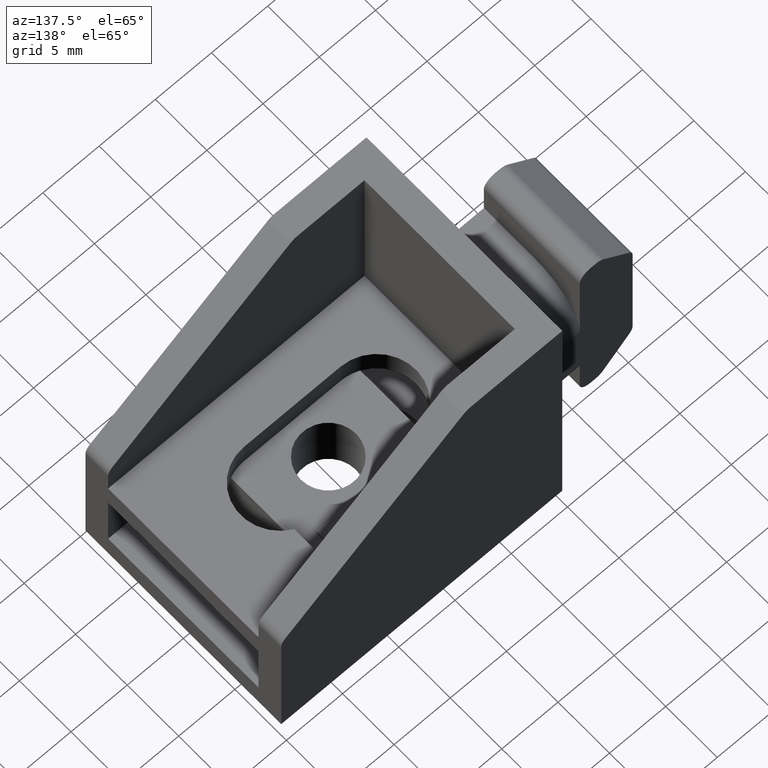
[diagram: clean part render]
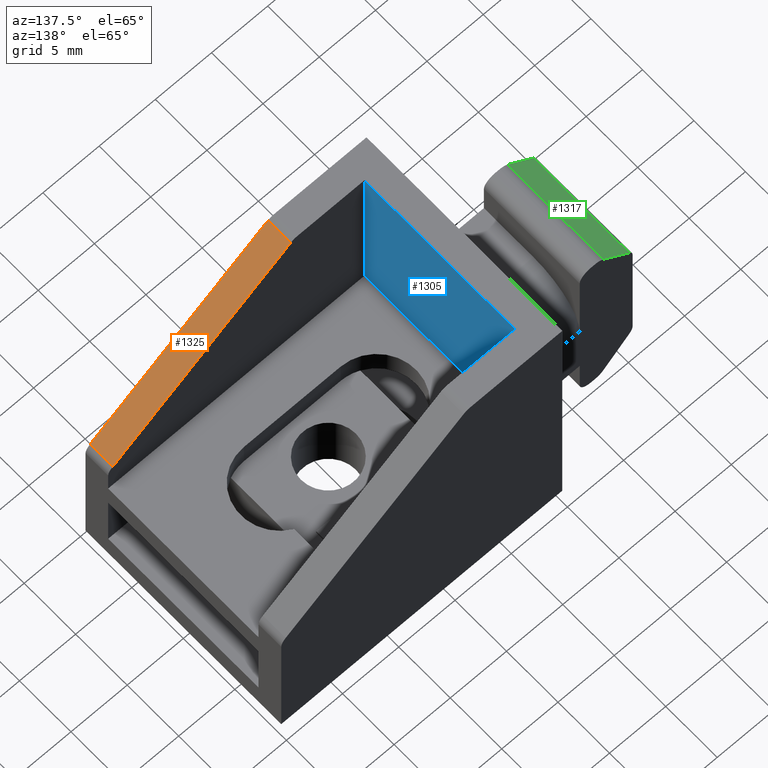
[diagram: same view with three faces highlighted in distinct colors, each labeled with its STEP entity id]
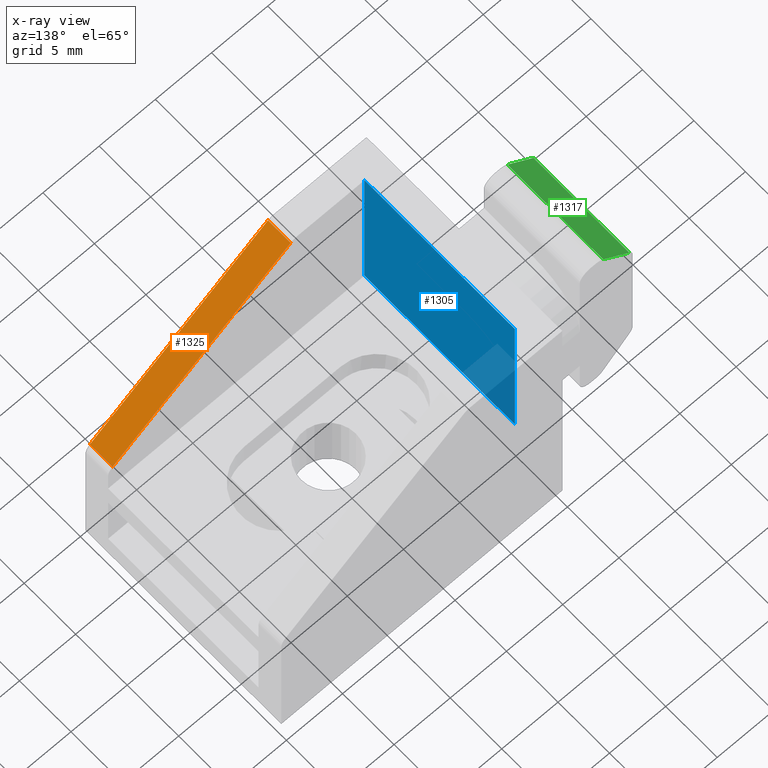
[diagram: x-ray of the same camera — body ghosted, the three highlighted faces saturated]
A machine part, auxiliary view with three faces highlighted in distinct colors.
The next image is the same camera in x-ray (body ghosted, the three faces saturated) — at least one of them is partly hidden behind the body in this view.
Their STEP definitions:

[orange] entity #1325 — the highlighted planar face has unit normal (0.5977, 0, 0.8017).
#52=PLANE('',#1438);
#180=LINE('',#2124,#324);
#202=LINE('',#2183,#346);
#203=LINE('',#2186,#347);
#204=LINE('',#2187,#348);
#324=VECTOR('',#1717,19.7465495528261);
#346=VECTOR('',#1795,2.2);
#347=VECTOR('',#1798,2.2);
#348=VECTOR('',#1799,19.7465495528261);
#418=FACE_OUTER_BOUND('',#490,.T.);
#490=EDGE_LOOP('',(#1211,#1212,#1213,#1214));
#657=VERTEX_POINT('',#2121);
#658=VERTEX_POINT('',#2123);
#667=VERTEX_POINT('',#2181);
#668=VERTEX_POINT('',#2185);
#826=EDGE_CURVE('',#658,#657,#180,.T.);
#855=EDGE_CURVE('',#658,#667,#202,.T.);
#856=EDGE_CURVE('',#668,#657,#203,.T.);
#857=EDGE_CURVE('',#667,#668,#204,.T.);
#1211=ORIENTED_EDGE('',*,*,#855,.F.);
#1212=ORIENTED_EDGE('',*,*,#826,.T.);
#1213=ORIENTED_EDGE('',*,*,#856,.F.);
#1214=ORIENTED_EDGE('',*,*,#857,.F.);
#1325=ADVANCED_FACE('',(#418),#52,.T.);
#1438=AXIS2_PLACEMENT_3D('',#2184,#1796,#1797);
#1717=DIRECTION('',(-0.801745863780567,0.,0.597665098454605));
#1795=DIRECTION('',(0.,-1.,0.));
#1796=DIRECTION('center_axis',(0.597665098454605,0.,0.801745863780567));
#1797=DIRECTION('ref_axis',(0.801745863780567,0.,-0.597665098454605));
#1798=DIRECTION('',(0.,1.,0.));
#1799=DIRECTION('',(-0.801745863780567,0.,0.597665098454605));
#2121=CARTESIAN_POINT('',(8.76595067053827,-7.3,24.6017458637806));
#2123=CARTESIAN_POINT('',(24.5976650984546,-7.3,12.799922381152));
#2124=CARTESIAN_POINT('',(12.6774600118096,-7.3,21.685893445742));
#2181=CARTESIAN_POINT('',(24.5976650984546,-9.5,12.799922381152));
#2183=CARTESIAN_POINT('',(24.5976650984546,0.,12.799922381152));
#2184=CARTESIAN_POINT('Origin',(8.50000000000001,0.,24.8));
#2185=CARTESIAN_POINT('',(8.76595067053827,-9.5,24.6017458637806));
#2186=CARTESIAN_POINT('',(8.76595067053827,0.,24.6017458637806));
#2187=CARTESIAN_POINT('',(8.50000000000001,-9.5,24.8));

[blue] entity #1305 — the highlighted planar face has unit normal (-1, 0, 0).
#43=PLANE('',#1412);
#133=LINE('',#2000,#277);
#178=LINE('',#2118,#322);
#182=LINE('',#2130,#326);
#183=LINE('',#2131,#327);
#277=VECTOR('',#1610,14.6);
#322=VECTOR('',#1713,14.8);
#326=VECTOR('',#1725,14.8);
#327=VECTOR('',#1726,14.6);
#398=FACE_OUTER_BOUND('',#469,.T.);
#469=EDGE_LOOP('',(#1116,#1117,#1118,#1119));
#610=VERTEX_POINT('',#1997);
#611=VERTEX_POINT('',#1999);
#655=VERTEX_POINT('',#2117);
#659=VERTEX_POINT('',#2129);
#763=EDGE_CURVE('',#611,#610,#133,.T.);
#823=EDGE_CURVE('',#655,#611,#178,.T.);
#829=EDGE_CURVE('',#610,#659,#182,.F.);
#830=EDGE_CURVE('',#655,#659,#183,.T.);
#1116=ORIENTED_EDGE('',*,*,#763,.T.);
#1117=ORIENTED_EDGE('',*,*,#829,.T.);
#1118=ORIENTED_EDGE('',*,*,#830,.F.);
#1119=ORIENTED_EDGE('',*,*,#823,.T.);
#1305=ADVANCED_FACE('',(#398),#43,.F.);
#1412=AXIS2_PLACEMENT_3D('',#2128,#1723,#1724);
#1610=DIRECTION('',(0.,1.,3.04170691678125E-16));
#1713=DIRECTION('',(0.,0.,-1.));
#1723=DIRECTION('center_axis',(-1.,0.,0.));
#1724=DIRECTION('ref_axis',(0.,0.,1.));
#1725=DIRECTION('',(0.,0.,-1.));
#1726=DIRECTION('',(0.,1.,0.));
#1997=CARTESIAN_POINT('',(2.2,7.3,10.));
#1999=CARTESIAN_POINT('',(2.2,-7.3,10.));
#2000=CARTESIAN_POINT('',(2.2,-3.65,10.));
#2117=CARTESIAN_POINT('',(2.2,-7.3,24.8));
#2118=CARTESIAN_POINT('',(2.2,-7.3,5.36366104696934));
#2128=CARTESIAN_POINT('Origin',(2.2,0.,0.));
#2129=CARTESIAN_POINT('',(2.2,7.3,24.8));
#2130=CARTESIAN_POINT('',(2.2,7.3,5.36366104696934));
#2131=CARTESIAN_POINT('',(2.2,0.,24.8));

[green] entity #1317 — the highlighted planar face has unit normal (-0.7071, 0, 0.7071).
#49=PLANE('',#1427);
#160=LINE('',#2064,#304);
#172=LINE('',#2099,#316);
#194=LINE('',#2160,#338);
#195=LINE('',#2162,#339);
#304=VECTOR('',#1665,3.27279220613579);
#316=VECTOR('',#1695,3.27279220613579);
#338=VECTOR('',#1765,9.3);
#339=VECTOR('',#1768,9.3);
#410=FACE_OUTER_BOUND('',#482,.T.);
#482=EDGE_LOOP('',(#1179,#1180,#1181,#1182));
#633=VERTEX_POINT('',#2061);
#634=VERTEX_POINT('',#2063);
#647=VERTEX_POINT('',#2096);
#648=VERTEX_POINT('',#2098);
#794=EDGE_CURVE('',#633,#634,#160,.T.);
#813=EDGE_CURVE('',#647,#648,#172,.T.);
#844=EDGE_CURVE('',#648,#633,#194,.T.);
#845=EDGE_CURVE('',#634,#647,#195,.T.);
#1179=ORIENTED_EDGE('',*,*,#844,.F.);
#1180=ORIENTED_EDGE('',*,*,#813,.F.);
#1181=ORIENTED_EDGE('',*,*,#845,.F.);
#1182=ORIENTED_EDGE('',*,*,#794,.F.);
#1317=ADVANCED_FACE('',(#410),#49,.T.);
#1427=AXIS2_PLACEMENT_3D('',#2161,#1766,#1767);
#1665=DIRECTION('',(0.707106781186548,0.,0.707106781186547));
#1695=DIRECTION('',(-0.707106781186548,0.,-0.707106781186547));
#1765=DIRECTION('',(0.,1.,0.));
#1766=DIRECTION('center_axis',(-0.707106781186547,0.,0.707106781186548));
#1767=DIRECTION('ref_axis',(0.707106781186548,0.,0.707106781186547));
#1768=DIRECTION('',(0.,-1.,0.));
#2061=CARTESIAN_POINT('',(-10.4071067811865,4.65,14.1928932188135));
#2063=CARTESIAN_POINT('',(-8.09289321881345,4.65,16.5071067811866));
#2064=CARTESIAN_POINT('',(-7.8,4.65,16.8));
#2096=CARTESIAN_POINT('',(-8.09289321881345,-4.65,16.5071067811866));
#2098=CARTESIAN_POINT('',(-10.4071067811865,-4.65,14.1928932188135));
#2099=CARTESIAN_POINT('',(-7.8,-4.65,16.8));
#2160=CARTESIAN_POINT('',(-10.4071067811865,0.,14.1928932188135));
#2161=CARTESIAN_POINT('Origin',(-10.7,0.,13.9));
#2162=CARTESIAN_POINT('',(-8.09289321881345,0.,16.5071067811866));